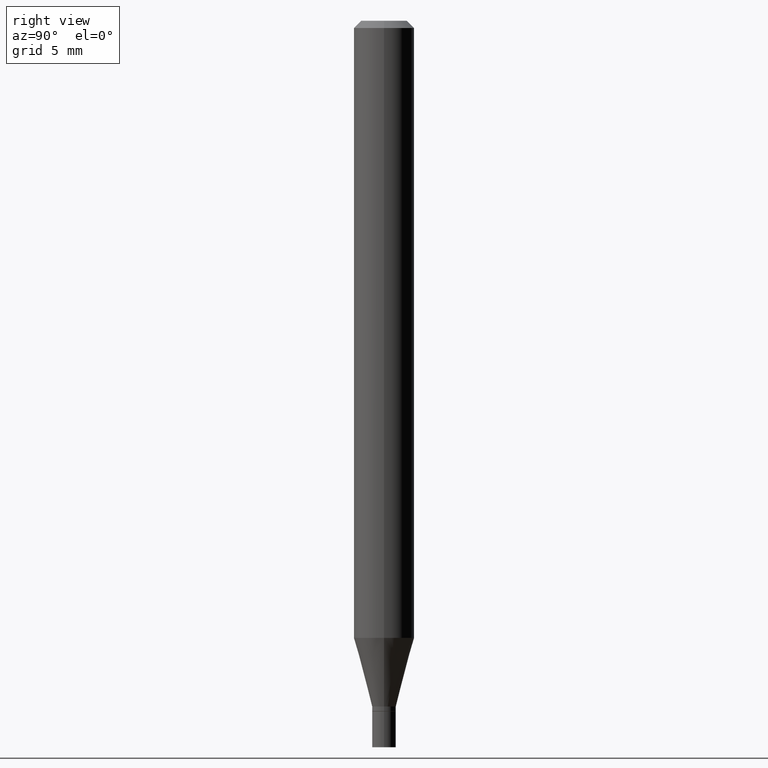
[diagram: clean part render]
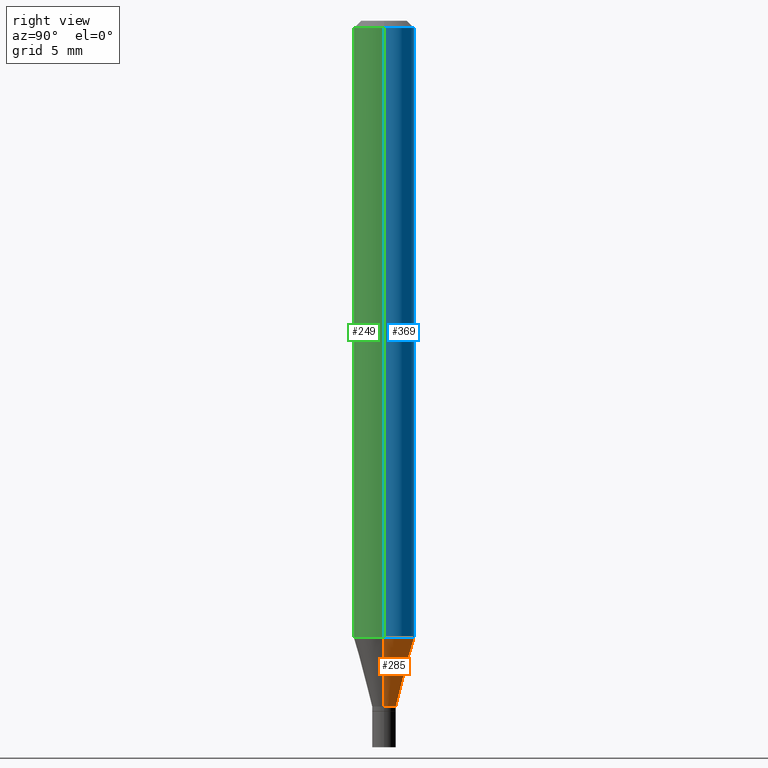
[diagram: same view with three faces highlighted in distinct colors, each labeled with its STEP entity id]
A machine part, right view with three faces highlighted in distinct colors.
Their STEP definitions:

[orange] entity #285 — the highlighted conical surface has half-angle 15 deg.
#1 = AXIS2_PLACEMENT_3D ( 'NONE', #351, #104, #232 ) ;
#7 = ORIENTED_EDGE ( 'NONE', *, *, #280, .F. ) ;
#21 = AXIS2_PLACEMENT_3D ( 'NONE', #395, #463, #35 ) ;
#35 = DIRECTION ( 'NONE',  ( 1.000000000000000000, -6.982962677686262766E-15, 0.000000000000000000 ) ) ;
#71 = CARTESIAN_POINT ( 'NONE',  ( 0.02449999999999992809, -5.115020161405207405E-15, -1.416000000000000147 ) ) ;
#80 = EDGE_CURVE ( 'NONE', #462, #364, #331, .T. ) ;
#104 = DIRECTION ( 'NONE',  ( -2.445468806185136597E-29, 3.491481338843145583E-15, 1.000000000000000000 ) ) ;
#114 = LINE ( 'NONE', #71, #140 ) ;
#124 = VERTEX_POINT ( 'NONE', #271 ) ;
#140 = VECTOR ( 'NONE', #211, 39.37007874015747433 ) ;
#144 = ORIENTED_EDGE ( 'NONE', *, *, #80, .T. ) ;
#166 = ORIENTED_EDGE ( 'NONE', *, *, #279, .T. ) ;
#175 = FACE_OUTER_BOUND ( 'NONE', #219, .T. ) ;
#192 = VERTEX_POINT ( 'NONE', #321 ) ;
#205 = EDGE_CURVE ( 'NONE', #462, #192, #114, .T. ) ;
#211 = DIRECTION ( 'NONE',  ( 0.2588190451025214611, 1.565188264969621573E-15, 0.9659258262890682012 ) ) ;
#219 = EDGE_LOOP ( 'NONE', ( #144, #166, #7, #392 ) ) ;
#232 = DIRECTION ( 'NONE',  ( 1.000000000000000000, -6.982962677686254089E-15, 0.000000000000000000 ) ) ;
#243 = DIRECTION ( 'NONE',  ( -0.2588190451025214611, 5.211531920934551042E-15, 0.9659258262890682012 ) ) ;
#247 = LINE ( 'NONE', #432, #323 ) ;
#257 = DIRECTION ( 'NONE',  ( 1.000000000000000000, -6.982962677686254089E-15, 0.000000000000000000 ) ) ;
#271 = CARTESIAN_POINT ( 'NONE',  ( -0.06250000000000000000, -4.004693707442665315E-15, -1.274182069312382870 ) ) ;
#279 = EDGE_CURVE ( 'NONE', #364, #124, #247, .T. ) ;
#280 = EDGE_CURVE ( 'NONE', #192, #124, #284, .T. ) ;
#284 = CIRCLE ( 'NONE', #21, 0.06250000000000000000 ) ;
#285 = ADVANCED_FACE ( 'NONE', ( #175 ), #460, .T. ) ;
#317 = CARTESIAN_POINT ( 'NONE',  ( 3.462783829558154044E-29, -4.943937575801894533E-15, -1.416000000000000147 ) ) ;
#321 = CARTESIAN_POINT ( 'NONE',  ( 0.06250000000000000000, -4.885218084648119600E-15, -1.274182069312382870 ) ) ;
#323 = VECTOR ( 'NONE', #243, 39.37007874015747433 ) ;
#331 = CIRCLE ( 'NONE', #1, 0.02449999999999992809 ) ;
#339 = AXIS2_PLACEMENT_3D ( 'NONE', #317, #427, #257 ) ;
#351 = CARTESIAN_POINT ( 'NONE',  ( 3.462783829558154044E-29, -4.943937575801894533E-15, -1.416000000000000147 ) ) ;
#364 = VERTEX_POINT ( 'NONE', #412 ) ;
#392 = ORIENTED_EDGE ( 'NONE', *, *, #205, .F. ) ;
#395 = CARTESIAN_POINT ( 'NONE',  ( 3.115972503903860033E-29, -4.448782917292728720E-15, -1.274182069312382870 ) ) ;
#412 = CARTESIAN_POINT ( 'NONE',  ( -0.02449999999999992809, -4.387274156491668166E-15, -1.416000000000000147 ) ) ;
#427 = DIRECTION ( 'NONE',  ( -2.445468806185136597E-29, 3.491481338843145583E-15, 1.000000000000000000 ) ) ;
#432 = CARTESIAN_POINT ( 'NONE',  ( -0.02449999999999992809, -4.769854605540670227E-15, -1.416000000000000147 ) ) ;
#440 = CARTESIAN_POINT ( 'NONE',  ( 0.02449999999999992809, -5.115020161405207405E-15, -1.416000000000000147 ) ) ;
#460 = CONICAL_SURFACE ( 'NONE', #339, 0.02449999999999992809, 0.2617993877991501295 ) ;
#462 = VERTEX_POINT ( 'NONE', #440 ) ;
#463 = DIRECTION ( 'NONE',  ( -2.445468806185136597E-29, 3.491481338843145583E-15, 1.000000000000000000 ) ) ;

[blue] entity #369 — the highlighted cylindrical surface (edge-blend (fillet) strip) has radius 1.5875 mm, axis along (-0, 0, 1).
#18 = LINE ( 'NONE', #51, #276 ) ;
#21 = AXIS2_PLACEMENT_3D ( 'NONE', #395, #463, #35 ) ;
#34 = AXIS2_PLACEMENT_3D ( 'NONE', #282, #176, #76 ) ;
#35 = DIRECTION ( 'NONE',  ( 1.000000000000000000, -6.982962677686262766E-15, 0.000000000000000000 ) ) ;
#47 = CARTESIAN_POINT ( 'NONE',  ( -0.06250000000000000000, -1.806488358837625086E-15, -0.01499999999999999944 ) ) ;
#51 = CARTESIAN_POINT ( 'NONE',  ( 0.06250000000000000000, -4.364351673553916694E-16, 3.047610484872459871E-30 ) ) ;
#76 = DIRECTION ( 'NONE',  ( 1.000000000000000000, -6.982962677686266711E-15, 0.000000000000000000 ) ) ;
#77 = AXIS2_PLACEMENT_3D ( 'NONE', #378, #123, #227 ) ;
#79 = ORIENTED_EDGE ( 'NONE', *, *, #229, .T. ) ;
#117 = CARTESIAN_POINT ( 'NONE',  ( 0.06250000000000000000, -4.888073874380388472E-16, -0.01499999999999999944 ) ) ;
#123 = DIRECTION ( 'NONE',  ( -2.445468806185136597E-29, 3.491481338843145583E-15, 1.000000000000000000 ) ) ;
#124 = VERTEX_POINT ( 'NONE', #271 ) ;
#155 = DIRECTION ( 'NONE',  ( -2.445468806185136877E-29, 3.491481338843145188E-15, 1.000000000000000000 ) ) ;
#157 = CYLINDRICAL_SURFACE ( 'NONE', #77, 0.06250000000000000000 ) ;
#176 = DIRECTION ( 'NONE',  ( -2.445468806185136597E-29, 3.491481338843145583E-15, 1.000000000000000000 ) ) ;
#192 = VERTEX_POINT ( 'NONE', #321 ) ;
#213 = DIRECTION ( 'NONE',  ( -2.445468806185136877E-29, 3.491481338843145188E-15, 1.000000000000000000 ) ) ;
#215 = CARTESIAN_POINT ( 'NONE',  ( -0.06250000000000000000, 4.440892098500626162E-16, -3.074334431409316114E-30 ) ) ;
#221 = EDGE_CURVE ( 'NONE', #318, #363, #222, .T. ) ;
#222 = CIRCLE ( 'NONE', #34, 0.06250000000000000000 ) ;
#227 = DIRECTION ( 'NONE',  ( 1.000000000000000000, -6.982962677686266711E-15, 4.876176775795935793E-29 ) ) ;
#229 = EDGE_CURVE ( 'NONE', #124, #363, #430, .T. ) ;
#248 = ORIENTED_EDGE ( 'NONE', *, *, #280, .T. ) ;
#255 = FACE_OUTER_BOUND ( 'NONE', #256, .T. ) ;
#256 = EDGE_LOOP ( 'NONE', ( #248, #79, #320, #435 ) ) ;
#271 = CARTESIAN_POINT ( 'NONE',  ( -0.06250000000000000000, -4.004693707442665315E-15, -1.274182069312382870 ) ) ;
#276 = VECTOR ( 'NONE', #155, 39.37007874015748143 ) ;
#280 = EDGE_CURVE ( 'NONE', #192, #124, #284, .T. ) ;
#282 = CARTESIAN_POINT ( 'NONE',  ( 3.668203209277705088E-31, -5.237222008264718399E-17, -0.01499999999999999944 ) ) ;
#284 = CIRCLE ( 'NONE', #21, 0.06250000000000000000 ) ;
#293 = VECTOR ( 'NONE', #213, 39.37007874015748143 ) ;
#318 = VERTEX_POINT ( 'NONE', #117 ) ;
#320 = ORIENTED_EDGE ( 'NONE', *, *, #221, .F. ) ;
#321 = CARTESIAN_POINT ( 'NONE',  ( 0.06250000000000000000, -4.885218084648119600E-15, -1.274182069312382870 ) ) ;
#341 = EDGE_CURVE ( 'NONE', #192, #318, #18, .T. ) ;
#363 = VERTEX_POINT ( 'NONE', #47 ) ;
#369 = ADVANCED_FACE ( 'NONE', ( #255 ), #157, .T. ) ;
#378 = CARTESIAN_POINT ( 'NONE',  ( 0.000000000000000000, 0.000000000000000000, 0.000000000000000000 ) ) ;
#395 = CARTESIAN_POINT ( 'NONE',  ( 3.115972503903860033E-29, -4.448782917292728720E-15, -1.274182069312382870 ) ) ;
#430 = LINE ( 'NONE', #215, #293 ) ;
#435 = ORIENTED_EDGE ( 'NONE', *, *, #341, .F. ) ;
#463 = DIRECTION ( 'NONE',  ( -2.445468806185136597E-29, 3.491481338843145583E-15, 1.000000000000000000 ) ) ;

[green] entity #249 — the highlighted cylindrical surface (edge-blend (fillet) strip) has radius 1.5875 mm, axis along (-0, 0, 1).
#2 = FACE_OUTER_BOUND ( 'NONE', #361, .T. ) ;
#5 = DIRECTION ( 'NONE',  ( -2.445468806185136597E-29, 3.491481338843145583E-15, 1.000000000000000000 ) ) ;
#14 = EDGE_CURVE ( 'NONE', #363, #318, #189, .T. ) ;
#18 = LINE ( 'NONE', #51, #276 ) ;
#47 = CARTESIAN_POINT ( 'NONE',  ( -0.06250000000000000000, -1.806488358837625086E-15, -0.01499999999999999944 ) ) ;
#51 = CARTESIAN_POINT ( 'NONE',  ( 0.06250000000000000000, -4.364351673553916694E-16, 3.047610484872459871E-30 ) ) ;
#58 = ORIENTED_EDGE ( 'NONE', *, *, #341, .T. ) ;
#98 = CARTESIAN_POINT ( 'NONE',  ( 3.668203209277705088E-31, -5.237222008264718399E-17, -0.01499999999999999944 ) ) ;
#113 = ORIENTED_EDGE ( 'NONE', *, *, #229, .F. ) ;
#117 = CARTESIAN_POINT ( 'NONE',  ( 0.06250000000000000000, -4.888073874380388472E-16, -0.01499999999999999944 ) ) ;
#124 = VERTEX_POINT ( 'NONE', #271 ) ;
#129 = EDGE_CURVE ( 'NONE', #124, #192, #216, .T. ) ;
#155 = DIRECTION ( 'NONE',  ( -2.445468806185136877E-29, 3.491481338843145188E-15, 1.000000000000000000 ) ) ;
#189 = CIRCLE ( 'NONE', #195, 0.06250000000000000000 ) ;
#192 = VERTEX_POINT ( 'NONE', #321 ) ;
#195 = AXIS2_PLACEMENT_3D ( 'NONE', #98, #311, #393 ) ;
#199 = ORIENTED_EDGE ( 'NONE', *, *, #129, .T. ) ;
#204 = CARTESIAN_POINT ( 'NONE',  ( 3.115972503903860033E-29, -4.448782917292728720E-15, -1.274182069312382870 ) ) ;
#213 = DIRECTION ( 'NONE',  ( -2.445468806185136877E-29, 3.491481338843145188E-15, 1.000000000000000000 ) ) ;
#215 = CARTESIAN_POINT ( 'NONE',  ( -0.06250000000000000000, 4.440892098500626162E-16, -3.074334431409316114E-30 ) ) ;
#216 = CIRCLE ( 'NONE', #230, 0.06250000000000000000 ) ;
#229 = EDGE_CURVE ( 'NONE', #124, #363, #430, .T. ) ;
#230 = AXIS2_PLACEMENT_3D ( 'NONE', #204, #420, #349 ) ;
#246 = CYLINDRICAL_SURFACE ( 'NONE', #316, 0.06250000000000000000 ) ;
#249 = ADVANCED_FACE ( 'NONE', ( #2 ), #246, .T. ) ;
#271 = CARTESIAN_POINT ( 'NONE',  ( -0.06250000000000000000, -4.004693707442665315E-15, -1.274182069312382870 ) ) ;
#276 = VECTOR ( 'NONE', #155, 39.37007874015748143 ) ;
#286 = CARTESIAN_POINT ( 'NONE',  ( 0.000000000000000000, 0.000000000000000000, 0.000000000000000000 ) ) ;
#293 = VECTOR ( 'NONE', #213, 39.37007874015748143 ) ;
#311 = DIRECTION ( 'NONE',  ( -2.445468806185136597E-29, 3.491481338843145583E-15, 1.000000000000000000 ) ) ;
#316 = AXIS2_PLACEMENT_3D ( 'NONE', #286, #5, #362 ) ;
#318 = VERTEX_POINT ( 'NONE', #117 ) ;
#321 = CARTESIAN_POINT ( 'NONE',  ( 0.06250000000000000000, -4.885218084648119600E-15, -1.274182069312382870 ) ) ;
#335 = ORIENTED_EDGE ( 'NONE', *, *, #14, .F. ) ;
#341 = EDGE_CURVE ( 'NONE', #192, #318, #18, .T. ) ;
#349 = DIRECTION ( 'NONE',  ( 1.000000000000000000, -6.982962677686262766E-15, 0.000000000000000000 ) ) ;
#361 = EDGE_LOOP ( 'NONE', ( #113, #199, #58, #335 ) ) ;
#362 = DIRECTION ( 'NONE',  ( 1.000000000000000000, -6.982962677686266711E-15, 4.876176775795935793E-29 ) ) ;
#363 = VERTEX_POINT ( 'NONE', #47 ) ;
#393 = DIRECTION ( 'NONE',  ( 1.000000000000000000, -6.982962677686266711E-15, 0.000000000000000000 ) ) ;
#420 = DIRECTION ( 'NONE',  ( -2.445468806185136597E-29, 3.491481338843145583E-15, 1.000000000000000000 ) ) ;
#430 = LINE ( 'NONE', #215, #293 ) ;